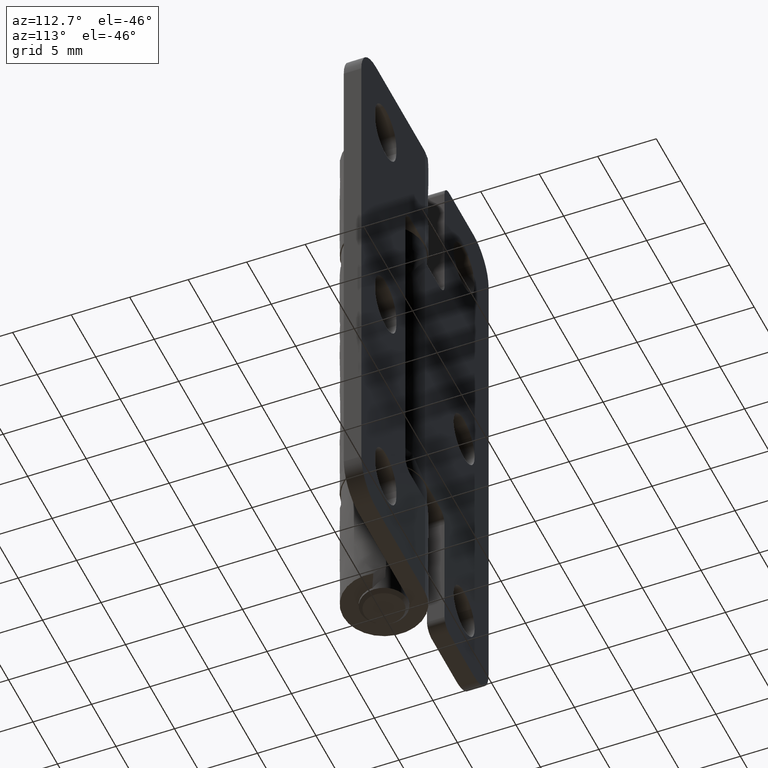
[diagram: clean part render]
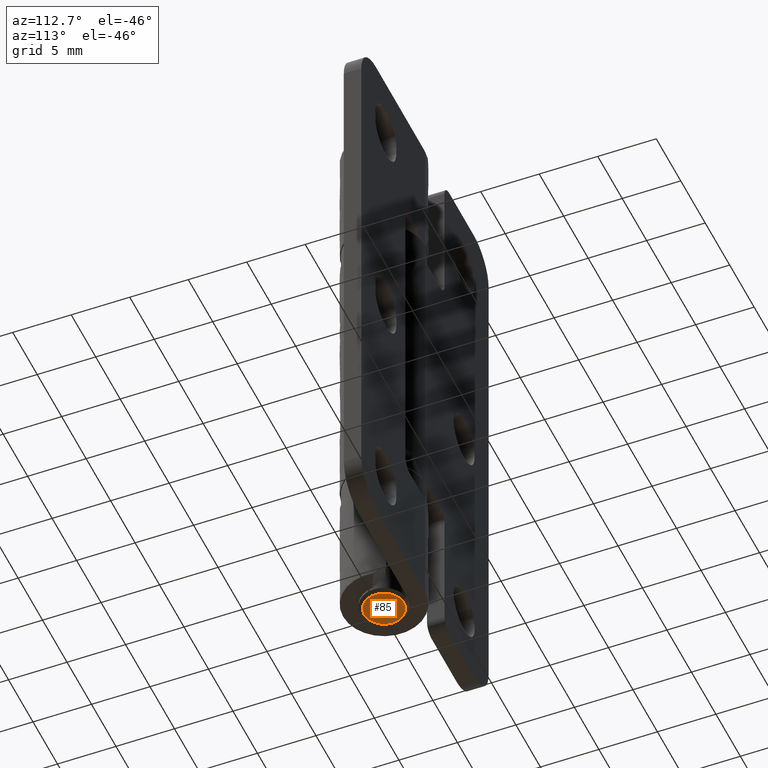
[diagram: same view with one face highlighted and labeled with its STEP entity id]
A machine part, auxiliary view. The second image highlights one B-rep face of the part: STEP entity #85.
In plain terms, the highlighted face is a freeform B-spline surface patch.
Its self-contained STEP definition (entity closure, byte-faithful):
#5=CARTESIAN_POINT('',(-1.869829993409939,-1.869829993409628,-0.500000000000000));
#6=CARTESIAN_POINT('',(1.869830084604699,-1.869829993409628,-0.500000000000000));
#7=CARTESIAN_POINT('',(-1.869829993409939,1.869830084604734,-0.500000000000000));
#8=CARTESIAN_POINT('',(1.869830084604699,1.869830084604734,-0.500000000000000));
#9=B_SPLINE_SURFACE_WITH_KNOTS('',1,1,((#5,#7),(#6,#8)),.UNSPECIFIED.,.F.,.F.,.U.,(2,2),(2,2),(0.0,3.739660078014638),(0.0,3.739660078014361),.UNSPECIFIED.);
#10=CARTESIAN_POINT('',(0.000000655678757,-1.699999999999534,-0.500000000000000));
#11=VERTEX_POINT('',#10);
#12=CARTESIAN_POINT('',(1.699999999999486,0.0,-0.500000000000000));
#13=VERTEX_POINT('',#12);
#14=CARTESIAN_POINT('',(0.000000655678757,-1.699999999999534,-0.500000000000000));
#15=CARTESIAN_POINT('',(0.173863746828385,-1.700093927844537,-0.500000000000043));
#16=CARTESIAN_POINT('',(0.458919783893705,-1.655858228560055,-0.499999999999822));
#17=CARTESIAN_POINT('',(0.818577120498029,-1.501669180138058,-0.500000000000220));
#18=CARTESIAN_POINT('',(1.101935463391845,-1.309823073992800,-0.499999999999730));
#19=CARTESIAN_POINT('',(1.326693240170389,-1.079469881075875,-0.500000000000384));
#20=CARTESIAN_POINT('',(1.507172721549669,-0.805730653379599,-0.499999999999446));
#21=CARTESIAN_POINT('',(1.655864099343818,-0.458921728731210,-0.500000000000298));
#22=CARTESIAN_POINT('',(1.700088454044620,-0.173862280431014,-0.499999999999865));
#23=CARTESIAN_POINT('',(1.699999999999486,0.0,-0.500000000000000));
#24=B_SPLINE_CURVE_WITH_KNOTS('',3,(#14,#15,#16,#17,#18,#19,#20,#21,#22,#23),.UNSPECIFIED.,.F.,.U.,(4,1,1,1,1,1,1,4),(0.000000072298461,0.521554251765930,0.855354476247145,1.168298462886340,1.543796207450912,1.815014872567594,2.148814963204800,2.670370141340728),.UNSPECIFIED.);
#25=EDGE_CURVE('',#11,#13,#24,.T.);
#26=ORIENTED_EDGE('',*,*,#25,.F.);
#27=CARTESIAN_POINT('',(-1.233136252610030,-1.170202609659206,-0.500000081847546));
#28=VERTEX_POINT('',#27);
#29=CARTESIAN_POINT('',(-1.233136252610030,-1.170202609659206,-0.500000081847546));
#30=CARTESIAN_POINT('',(-1.149061058802555,-1.258829110348993,-0.500000076267163));
#31=CARTESIAN_POINT('',(-0.961688766884771,-1.417817532922610,-0.500000063830683));
#32=CARTESIAN_POINT('',(-0.553180645821010,-1.634867499742745,-0.500000036716521));
#33=CARTESIAN_POINT('',(-0.215611137728405,-1.700206533132442,-0.500000014311006));
#34=CARTESIAN_POINT('',(0.000000655678757,-1.699999999999534,-0.500000000000000));
#35=B_SPLINE_CURVE_WITH_KNOTS('',3,(#29,#30,#31,#32,#33,#34),.UNSPECIFIED.,.F.,.U.,(4,1,1,4),(0.000000020280328,0.366480998841209,0.732959056473982,1.379692573379040),.UNSPECIFIED.);
#36=EDGE_CURVE('',#28,#11,#35,.T.);
#37=ORIENTED_EDGE('',*,*,#36,.F.);
#38=CARTESIAN_POINT('',(-1.699999999999833,0.0,-0.500000000000000));
#39=VERTEX_POINT('',#38);
#40=CARTESIAN_POINT('',(-1.699999999999833,0.0,-0.500000000000000));
#41=CARTESIAN_POINT('',(-1.700170643915496,-0.201696486620245,-0.500000014107329));
#42=CARTESIAN_POINT('',(-1.644298651650706,-0.510794337083312,-0.500000035726480));
#43=CARTESIAN_POINT('',(-1.455965526466238,-0.899777358254596,-0.500000062933204));
#44=CARTESIAN_POINT('',(-1.316444742881711,-1.082445175329643,-0.500000075709487));
#45=CARTESIAN_POINT('',(-1.233136252610030,-1.170202609659206,-0.500000081847546));
#46=B_SPLINE_CURVE_WITH_KNOTS('',3,(#40,#41,#42,#43,#44,#45),.UNSPECIFIED.,.F.,.U.,(4,1,1,4),(8.557733E-009,0.605016364830712,0.927691439782123,1.290701153683496),.UNSPECIFIED.);
#47=EDGE_CURVE('',#39,#28,#46,.T.);
#48=ORIENTED_EDGE('',*,*,#47,.F.);
#49=CARTESIAN_POINT('',(-0.000000655679097,1.699999999999534,-0.500000000000000));
#50=VERTEX_POINT('',#49);
#51=CARTESIAN_POINT('',(-0.000000655679097,1.699999999999534,-0.500000000000000));
#52=CARTESIAN_POINT('',(-0.173860792304142,1.700089215542892,-0.500000000000107));
#53=CARTESIAN_POINT('',(-0.472831199657047,1.653710713727248,-0.499999999999901));
#54=CARTESIAN_POINT('',(-0.888591761912380,1.469420099736447,-0.500000000000156));
#55=CARTESIAN_POINT('',(-1.242708640380621,1.193154287665033,-0.500000000000057));
#56=CARTESIAN_POINT('',(-1.497992866571315,0.839895532720074,-0.500000000000000));
#57=CARTESIAN_POINT('',(-1.661428697732062,0.431119439635385,-0.499999999999950));
#58=CARTESIAN_POINT('',(-1.700058043544622,0.159947987408358,-0.500000000000099));
#59=CARTESIAN_POINT('',(-1.699999999999833,0.0,-0.500000000000000));
#60=B_SPLINE_CURVE_WITH_KNOTS('',3,(#51,#52,#53,#54,#55,#56,#57,#58,#59),.UNSPECIFIED.,.F.,.U.,(4,1,1,1,1,1,4),(0.000000072298040,0.521554251765674,0.897080045914295,1.356025281328590,1.856740284100642,2.190540374772040,2.670370141340730),.UNSPECIFIED.);
#61=EDGE_CURVE('',#50,#39,#60,.T.);
#62=ORIENTED_EDGE('',*,*,#61,.F.);
#63=CARTESIAN_POINT('',(1.233136252609687,1.170202609659210,-0.500000081847546));
#64=VERTEX_POINT('',#63);
#65=CARTESIAN_POINT('',(1.233136252609687,1.170202609659210,-0.500000081847546));
#66=CARTESIAN_POINT('',(1.084868687380834,1.326744102652015,-0.500000072006493));
#67=CARTESIAN_POINT('',(0.805105909284686,1.526631663181101,-0.500000053437887));
#68=CARTESIAN_POINT('',(0.366464931962695,1.673546131034791,-0.500000024323384));
#69=CARTESIAN_POINT('',(0.122160454426274,1.700020174620658,-0.500000008108678));
#70=CARTESIAN_POINT('',(-0.000000655679097,1.699999999999534,-0.500000000000000));
#71=B_SPLINE_CURVE_WITH_KNOTS('',3,(#65,#66,#67,#68,#69,#70),.UNSPECIFIED.,.F.,.U.,(4,1,1,4),(0.000000020280290,0.646733537149135,1.013211594817957,1.379692573379034),.UNSPECIFIED.);
#72=EDGE_CURVE('',#64,#50,#71,.T.);
#73=ORIENTED_EDGE('',*,*,#72,.F.);
#74=CARTESIAN_POINT('',(1.699999999999486,0.0,-0.500000000000000));
#75=CARTESIAN_POINT('',(1.700172670300220,0.201699171104633,-0.500000014107393));
#76=CARTESIAN_POINT('',(1.649148612782748,0.483907616867451,-0.500000033846149));
#77=CARTESIAN_POINT('',(1.470467223873300,0.876488143430998,-0.500000061303993));
#78=CARTESIAN_POINT('',(1.334971679799709,1.062952907791138,-0.500000074346538));
#79=CARTESIAN_POINT('',(1.233136252609687,1.170202609659210,-0.500000081847546));
#80=B_SPLINE_CURVE_WITH_KNOTS('',3,(#74,#75,#76,#77,#78,#79),.UNSPECIFIED.,.F.,.U.,(4,1,1,4),(8.557703E-009,0.605016364830700,0.847022503380395,1.290701153683498),.UNSPECIFIED.);
#81=EDGE_CURVE('',#13,#64,#80,.T.);
#82=ORIENTED_EDGE('',*,*,#81,.F.);
#83=EDGE_LOOP('',(#26,#37,#48,#62,#73,#82));
#84=FACE_OUTER_BOUND('',#83,.T.);
#85=ADVANCED_FACE('',(#84),#9,.F.);